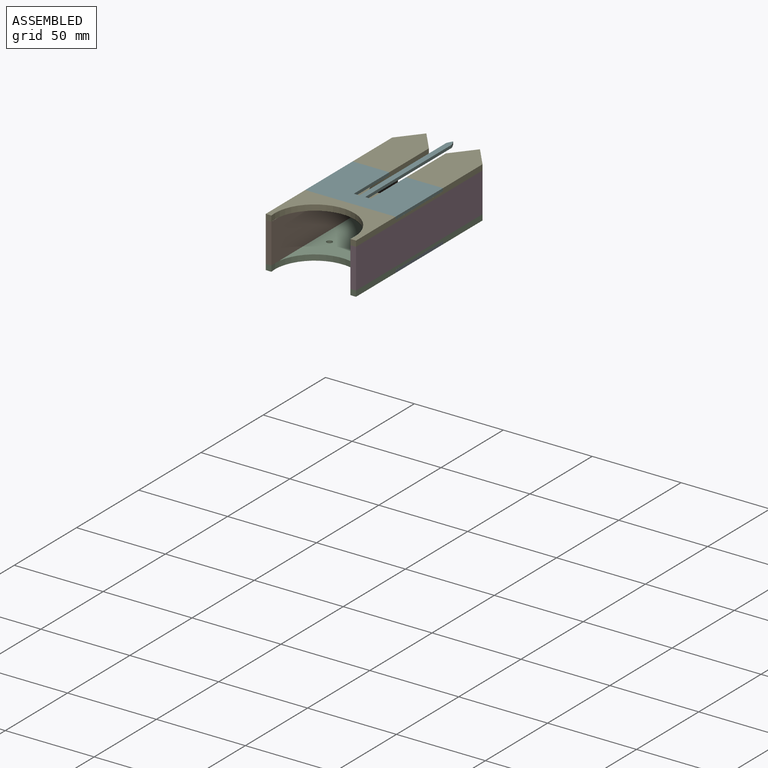
[diagram: assembled view]
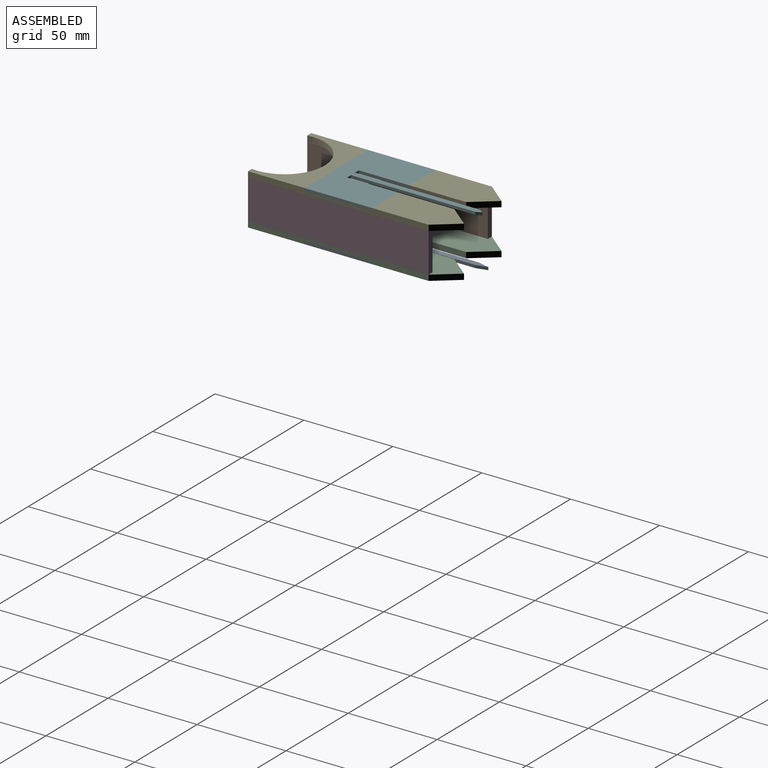
[diagram: assembled view, second angle]
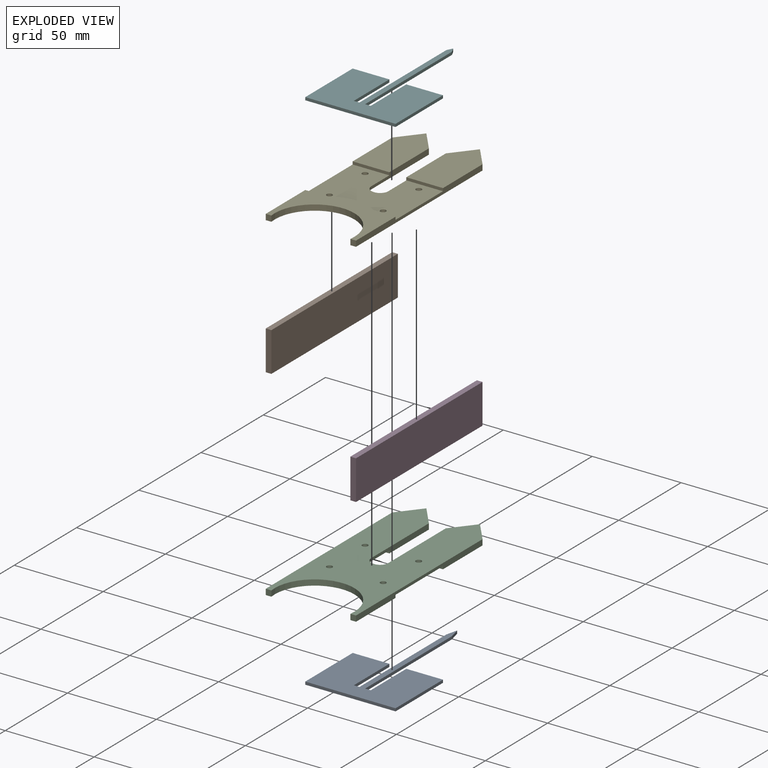
[diagram: exploded view]
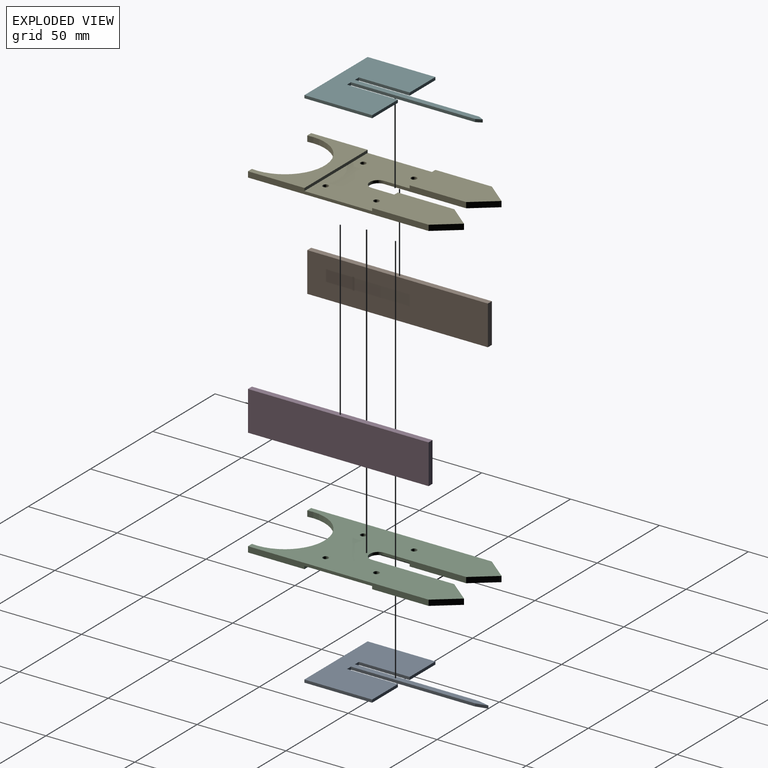
[diagram: exploded view, second angle]
ASSEMBLY  parts=6 mates=5
PART A: 15 faces, bbox 50.8x85.7x1.6 mm
  f0: plane 28.58x1.59mm, normal (-1,0,0), area 45.4mm2, adj f1,f12,f13,f14
  f1: plane 3.16x1.59mm, normal (0,1,0), area 5mm2, adj f0,f2,f13,f14
  f2: plane 69.85x1.59mm, normal (1,0,0), area 110.9mm2, adj f1,f3,f13,f14
  f3: plane 6.35x1.59mm, normal (0.97,0.24,0), area 10.4mm2, adj f2,f4,f13,f14
  f4: plane 6.35x1.59mm, normal (-0.97,0.24,0), area 10.4mm2, adj f3,f5,f13,f14
  f5: plane 69.85x1.59mm, normal (-1,0,0), area 110.9mm2, adj f4,f6,f13,f14
  f6: plane 3.16x1.59mm, normal (0,1,0), area 5mm2, adj f5,f7,f13,f14
  f7: plane 28.58x1.59mm, normal (1,0,0), area 45.4mm2, adj f6,f8,f13,f14
  f8: plane 20.65x1.59mm, normal (0,1,0), area 32.8mm2, adj f7,f9,f13,f14
  f9: plane 38.1x1.59mm, normal (-1,0,0), area 60.5mm2, adj f8,f10,f13,f14
  f10: plane 50.8x1.59mm, normal (0,-1,0), area 80.6mm2, adj f9,f11,f13,f14
  f11: plane 38.1x1.59mm, normal (1,0,0), area 60.5mm2, adj f10,f12,f13,f14
  f12: plane 20.65x1.59mm, normal (0,1,0), area 32.8mm2, adj f0,f11,f13,f14
  f13: plane 85.73x50.8mm, normal (0,0,1), area 1895.9mm2, adj f0,f1,f2,f3,f4,f5,f6,f7
  f14: plane 85.73x50.8mm, normal (0,0,-1), area 1895.9mm2, adj f0,f1,f2,f3,f4,f5,f6,f7
PART B: 6 faces, bbox 3.2x101.6x22.2 mm
  f0: plane 22.23x3.18mm, normal (0,-1,0), area 70.6mm2, adj f1,f3,f4,f5
  f1: plane 101.6x22.23mm, normal (1,0,0), area 2258.1mm2, adj f0,f2,f4,f5
  f2: plane 22.23x3.18mm, normal (0,1,0), area 70.6mm2, adj f1,f3,f4,f5
  f3: plane 101.6x22.23mm, normal (-1,0,0), area 2258.1mm2, adj f0,f2,f4,f5
  f4: plane 101.6x3.18mm, normal (0,0,1), area 322.6mm2, adj f0,f1,f2,f3
  f5: plane 101.6x3.18mm, normal (0,0,-1), area 322.6mm2, adj f0,f1,f2,f3
PART C: 26 faces, bbox 50.8x114.3x3.2 mm
  f0: plane 3.18x3.18mm, normal (0,-1,0), area 10.1mm2, adj f4,f9,f16,f19
  f1: plane 101.6x3.18mm, normal (-1,0,0), area 262.1mm2, adj f4,f7,f8,f15,f16,f17,f18,f20
  f2: plane 1.59x0.38mm, normal (0,1,0), area 0.6mm2, adj f5,f6,f16,f18
  f3: plane 44.45x20.64mm, normal (0,0,1), area 786.3mm2, adj f9,f10,f11,f12,f21
  f4: plane 50.8x31.75mm, normal (0,0,1), area 690mm2, adj f0,f1,f8,f9,f17,f19
  f5: cylinder r=4.57mm len=4.57mm, axis (0,0,1), area 11.4mm2, adj f2,f12,f16,f18
  f6: cylinder r=4.57mm len=4.57mm, axis (0,0,-1), area 11.4mm2, adj f2,f13,f16,f18
  f7: plane 12.7x10.32mm, normal (-0.78,0.63,0), area 52mm2, adj f1,f14,f15,f16
  f8: plane 3.18x3.18mm, normal (0,-1,0), area 10.1mm2, adj f1,f4,f16,f19
  f9: plane 101.6x3.18mm, normal (1,0,0), area 262.1mm2, adj f0,f3,f4,f10,f16,f17,f18,f21
  f10: plane 12.7x10.32mm, normal (0.78,0.63,0), area 52mm2, adj f3,f9,f11,f16
  f11: plane 12.7x10.32mm, normal (-0.78,0.63,0), area 52mm2, adj f3,f10,f12,f16
  f12: plane 46.23x3.18mm, normal (-1,0,0), area 123.8mm2, adj f3,f5,f11,f16,f18,f21
  f13: plane 46.23x3.18mm, normal (1,0,0), area 123.8mm2, adj f6,f14,f15,f16,f18,f20
  f14: plane 12.7x10.32mm, normal (0.78,0.63,0), area 52mm2, adj f7,f13,f15,f16
  f15: plane 44.45x20.64mm, normal (0,0,1), area 786.3mm2, adj f1,f7,f13,f14,f20
  f16: plane 114.3x50.8mm, normal (0,0,-1), area 3993.6mm2, adj f0,f1,f2,f5,f6,f7,f8,f9
  f17: plane 50.8x1.59mm, normal (0,1,0), area 80.6mm2, adj f1,f4,f9,f18
  f18: plane 50.8x38.1mm, normal (0,0,1), area 1731mm2, adj f1,f2,f5,f6,f9,f12,f13,f17
  f19: cylinder r=22.42mm len=44.85mm, axis (0,0,1), area 242.6mm2, adj f0,f4,f8,f16
  f20: plane 20.64x1.59mm, normal (0,-1,0), area 32.8mm2, adj f1,f13,f15,f18
  f21: plane 20.64x1.59mm, normal (0,-1,0), area 32.8mm2, adj f3,f9,f12,f18
  f22: cylinder r=1.62mm len=3.24mm, axis (0,0,1), area 16.2mm2, adj f16,f18
  f23: cylinder r=1.59mm len=3.18mm, axis (0,0,1), area 15.8mm2, adj f16,f18
  f24: cylinder r=1.59mm len=3.18mm, axis (0,0,1), area 15.8mm2, adj f16,f18
  f25: cylinder r=1.59mm len=3.18mm, axis (0,0,1), area 15.8mm2, adj f16,f18
PART D: same geometry as B
PART E: same geometry as C
PART F: 15 faces, bbox 50.8x82.6x1.6 mm
  f0: plane 28.58x1.59mm, normal (-1,0,0), area 45.4mm2, adj f1,f12,f13,f14
  f1: plane 3.16x1.59mm, normal (0,1,0), area 5mm2, adj f0,f2,f13,f14
  f2: plane 69.85x1.59mm, normal (1,0,0), area 110.9mm2, adj f1,f3,f13,f14
  f3: plane 3.18x1.59mm, normal (0.89,0.45,0), area 5.6mm2, adj f2,f4,f13,f14
  f4: plane 3.18x1.59mm, normal (-0.89,0.45,0), area 5.6mm2, adj f3,f5,f13,f14
  f5: plane 69.85x1.59mm, normal (-1,0,0), area 110.9mm2, adj f4,f6,f13,f14
  f6: plane 3.16x1.59mm, normal (0,1,0), area 5mm2, adj f5,f7,f13,f14
  f7: plane 28.58x1.59mm, normal (1,0,0), area 45.4mm2, adj f6,f8,f13,f14
  f8: plane 20.65x1.59mm, normal (0,1,0), area 32.8mm2, adj f7,f9,f13,f14
  f9: plane 38.1x1.59mm, normal (-1,0,0), area 60.5mm2, adj f8,f10,f13,f14
  f10: plane 50.8x1.59mm, normal (0,-1,0), area 80.6mm2, adj f9,f11,f13,f14
  f11: plane 38.1x1.59mm, normal (1,0,0), area 60.5mm2, adj f10,f12,f13,f14
  f12: plane 20.65x1.59mm, normal (0,1,0), area 32.8mm2, adj f0,f11,f13,f14
  f13: plane 82.55x50.8mm, normal (0,0,1), area 1890.8mm2, adj f0,f1,f2,f3,f4,f5,f6,f7
  f14: plane 82.55x50.8mm, normal (0,0,-1), area 1890.8mm2, adj f0,f1,f2,f3,f4,f5,f6,f7
PLACE A t=(112.35,35.84,122.92)mm
PLACE B t=(88.53,35.84,126.1)mm
PLACE C rot(axis=(0,1,0),180deg) t=(137.74,-14.96,126.1)mm
PLACE D t=(136.16,35.84,126.1)mm
PLACE E t=(86.94,-14.96,148.32)mm
PLACE F rot(axis=(0,1,0),180deg) t=(112.34,35.84,151.5)mm
MATE fastened D.f4 <-> E.f16  axis (0,0,1) through (137.74,86.64,148.32)mm
MATE fastened F.f13 <-> E.f18  axis (0,0,-1) through (97.26,54.89,149.91)mm
MATE fastened B.f4 <-> E.f16  axis (0,0,1) through (90.12,-14.96,148.32)mm
MATE fastened A.f13 <-> C.f18  axis (0,0,1) through (127.42,54.89,124.51)mm
MATE fastened C.f16 <-> B.f5  axis (0,0,1) through (86.94,-14.96,126.1)mm
